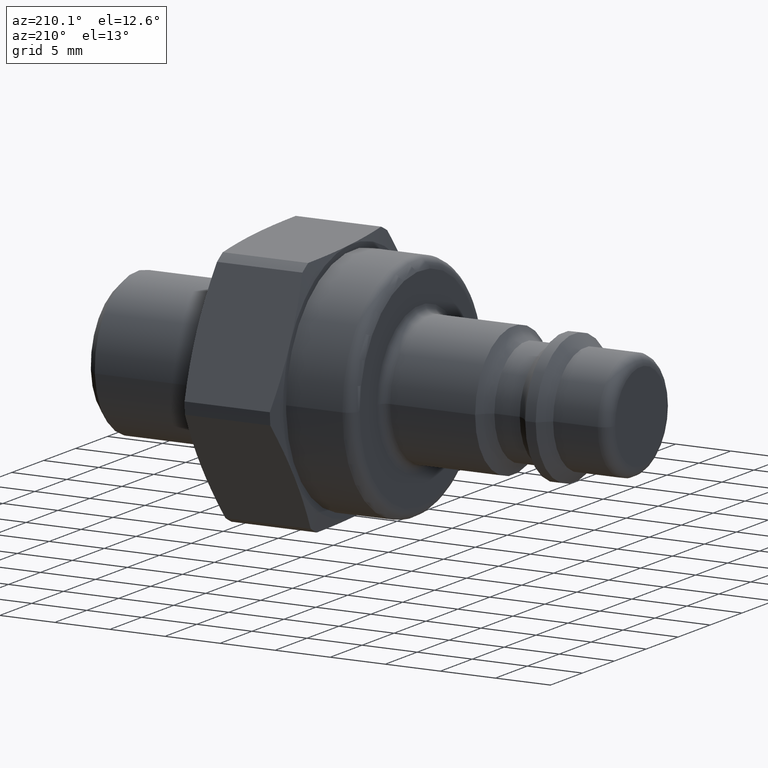
[diagram: clean part render]
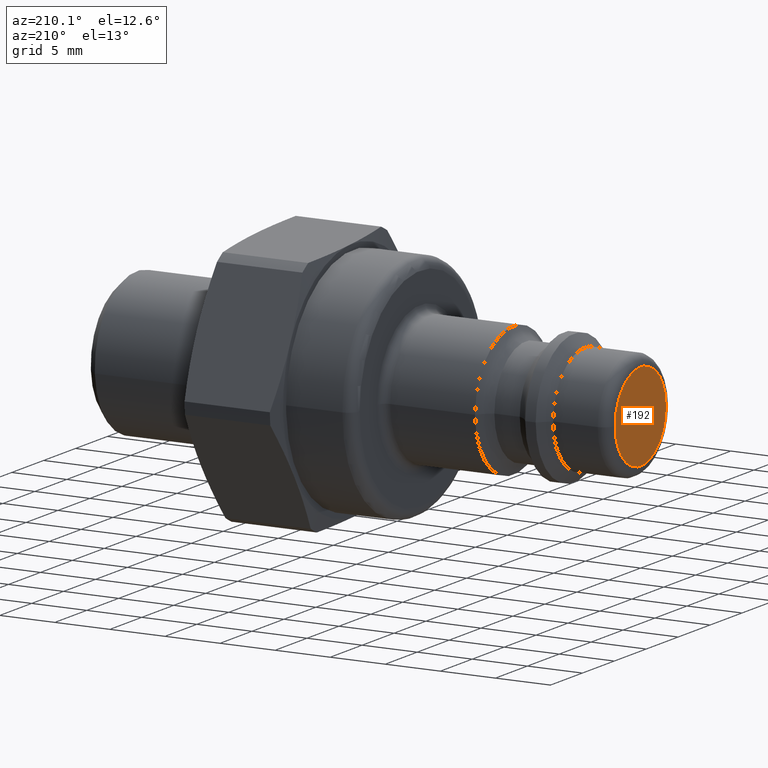
[diagram: same view with one face highlighted and labeled with its STEP entity id]
A machine part, auxiliary view. The second image highlights one B-rep face of the part: STEP entity #192.
In plain terms, the highlighted planar face has unit normal (-1, 0, 0).
Its self-contained STEP definition (entity closure, byte-faithful):
#176=CARTESIAN_POINT('',(-8.326673E-016,3.899999999999999,0.0));
#177=DIRECTION('',(-1.0,0.0,0.0));
#178=DIRECTION('',(0.0,0.0,1.0));
#179=AXIS2_PLACEMENT_3D('',#176,#177,#178);
#180=PLANE('',#179);
#181=CARTESIAN_POINT('',(-8.326673E-016,4.0,0.0));
#182=VERTEX_POINT('',#181);
#183=CARTESIAN_POINT('',(-8.326673E-016,0.0,0.0));
#184=DIRECTION('',(1.0,0.0,0.0));
#185=DIRECTION('',(0.0,-1.0,0.0));
#186=AXIS2_PLACEMENT_3D('',#183,#184,#185);
#187=CIRCLE('',#186,4.0);
#188=EDGE_CURVE('',#182,#182,#187,.T.);
#189=ORIENTED_EDGE('',*,*,#188,.F.);
#190=EDGE_LOOP('',(#189));
#191=FACE_OUTER_BOUND('',#190,.T.);
#192=ADVANCED_FACE('',(#191),#180,.T.);